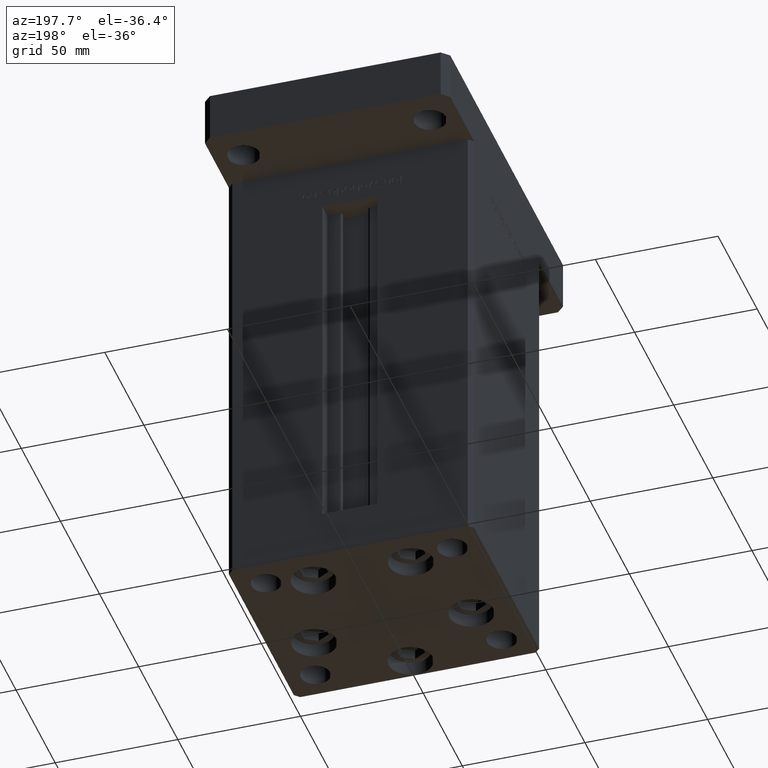
[diagram: clean part render]
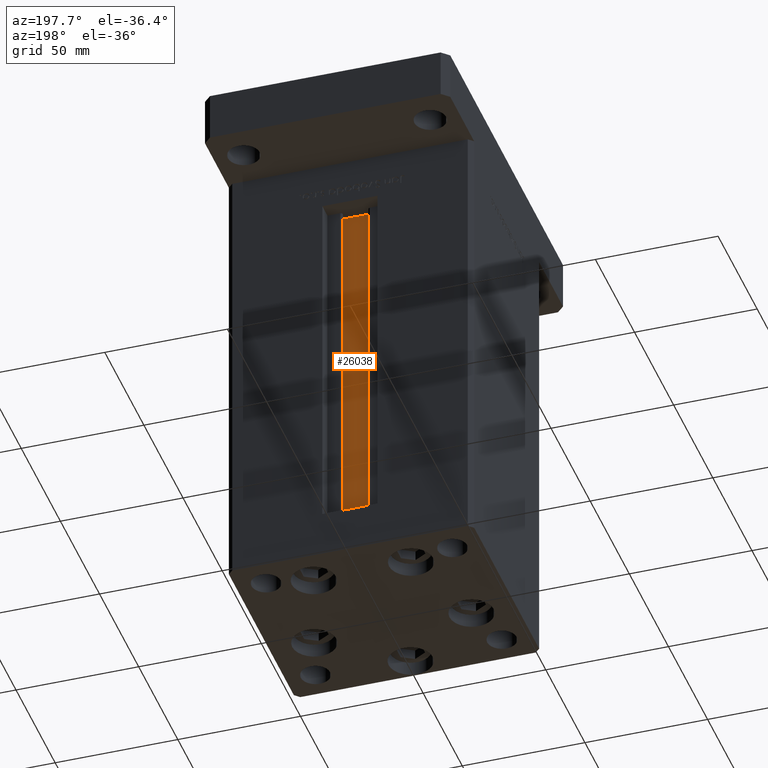
[diagram: same view with one face highlighted and labeled with its STEP entity id]
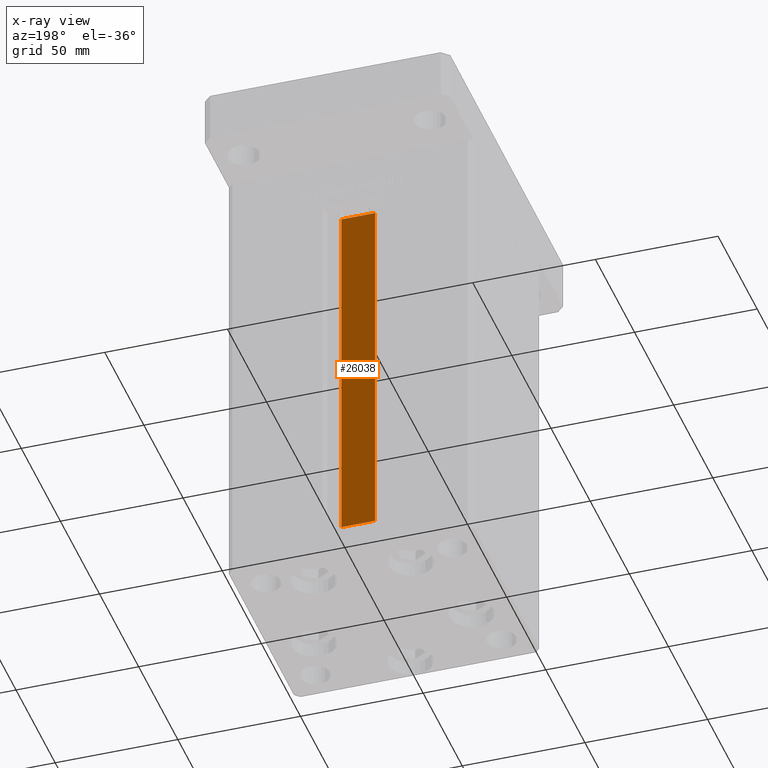
[diagram: x-ray of the same camera — body ghosted, the highlighted face saturated]
A machine part, auxiliary view. The second image highlights one B-rep face of the part: STEP entity #26038.
The next image is the same camera in x-ray: the body ghosted, the highlighted face saturated — about 0% of this face is hidden behind the body in this view.
In plain terms, the highlighted planar face has unit normal (0, -1, 0).
Its self-contained STEP definition (entity closure, byte-faithful):
#875 = EDGE_CURVE ( 'NONE', #37464, #36895, #14488, .T. ) ;
#2010 = FACE_OUTER_BOUND ( 'NONE', #48633, .T. ) ;
#5646 = CARTESIAN_POINT ( 'NONE',  ( 6.876153656360465050, 32.99999999999986500, 0.000000000000000000 ) ) ;
#7879 = CARTESIAN_POINT ( 'NONE',  ( 6.876153656360465050, 32.99999999999986500, 0.000000000000000000 ) ) ;
#9657 = VERTEX_POINT ( 'NONE', #36087 ) ;
#9989 = DIRECTION ( 'NONE',  ( -0.000000000000000000, -0.000000000000000000, 1.000000000000000000 ) ) ;
#11021 = DIRECTION ( 'NONE',  ( 0.000000000000000000, 0.000000000000000000, -1.000000000000000000 ) ) ;
#11795 = VECTOR ( 'NONE', #38895, 1000.000000000000000 ) ;
#11877 = CARTESIAN_POINT ( 'NONE',  ( -6.876153656360465050, 32.99999999999986500, 148.5000000000000000 ) ) ;
#14488 = LINE ( 'NONE', #22936, #14740 ) ;
#14740 = VECTOR ( 'NONE', #48285, 1000.000000000000000 ) ;
#14982 = LINE ( 'NONE', #36768, #36873 ) ;
#18045 = EDGE_CURVE ( 'NONE', #9657, #36895, #14982, .T. ) ;
#18636 = DIRECTION ( 'NONE',  ( 0.000000000000000000, -1.000000000000000000, -0.000000000000000000 ) ) ;
#20485 = VERTEX_POINT ( 'NONE', #7879 ) ;
#22936 = CARTESIAN_POINT ( 'NONE',  ( 0.000000000000000000, 32.99999999999986500, 148.5000000000000000 ) ) ;
#22995 = ORIENTED_EDGE ( 'NONE', *, *, #52786, .F. ) ;
#23010 = CARTESIAN_POINT ( 'NONE',  ( 6.876153656360465050, 32.99999999999986500, 0.000000000000000000 ) ) ;
#26038 = ADVANCED_FACE ( 'NONE', ( #2010 ), #31181, .F. ) ;
#27791 = EDGE_CURVE ( 'NONE', #9657, #20485, #42989, .T. ) ;
#28723 = ORIENTED_EDGE ( 'NONE', *, *, #27791, .F. ) ;
#31181 = PLANE ( 'NONE',  #44823 ) ;
#31230 = CARTESIAN_POINT ( 'NONE',  ( 6.876153656360465050, 32.99999999999986500, 0.000000000000000000 ) ) ;
#32147 = DIRECTION ( 'NONE',  ( -0.000000000000000000, -0.000000000000000000, 1.000000000000000000 ) ) ;
#34235 = LINE ( 'NONE', #31230, #34729 ) ;
#34729 = VECTOR ( 'NONE', #9989, 1000.000000000000000 ) ;
#36087 = CARTESIAN_POINT ( 'NONE',  ( -6.876153656360465050, 32.99999999999986500, 0.000000000000000000 ) ) ;
#36768 = CARTESIAN_POINT ( 'NONE',  ( -6.876153656360465050, 32.99999999999986500, 0.000000000000000000 ) ) ;
#36873 = VECTOR ( 'NONE', #32147, 1000.000000000000000 ) ;
#36895 = VERTEX_POINT ( 'NONE', #11877 ) ;
#37464 = VERTEX_POINT ( 'NONE', #44438 ) ;
#38895 = DIRECTION ( 'NONE',  ( 1.000000000000000000, -0.000000000000000000, -0.000000000000000000 ) ) ;
#42120 = ORIENTED_EDGE ( 'NONE', *, *, #875, .F. ) ;
#42989 = LINE ( 'NONE', #5646, #11795 ) ;
#44438 = CARTESIAN_POINT ( 'NONE',  ( 6.876153656360465050, 32.99999999999986500, 148.5000000000000000 ) ) ;
#44823 = AXIS2_PLACEMENT_3D ( 'NONE', #23010, #18636, #11021 ) ;
#48285 = DIRECTION ( 'NONE',  ( -1.000000000000000000, 0.000000000000000000, 0.000000000000000000 ) ) ;
#48633 = EDGE_LOOP ( 'NONE', ( #22995, #28723, #51026, #42120 ) ) ;
#51026 = ORIENTED_EDGE ( 'NONE', *, *, #18045, .T. ) ;
#52786 = EDGE_CURVE ( 'NONE', #20485, #37464, #34235, .T. ) ;